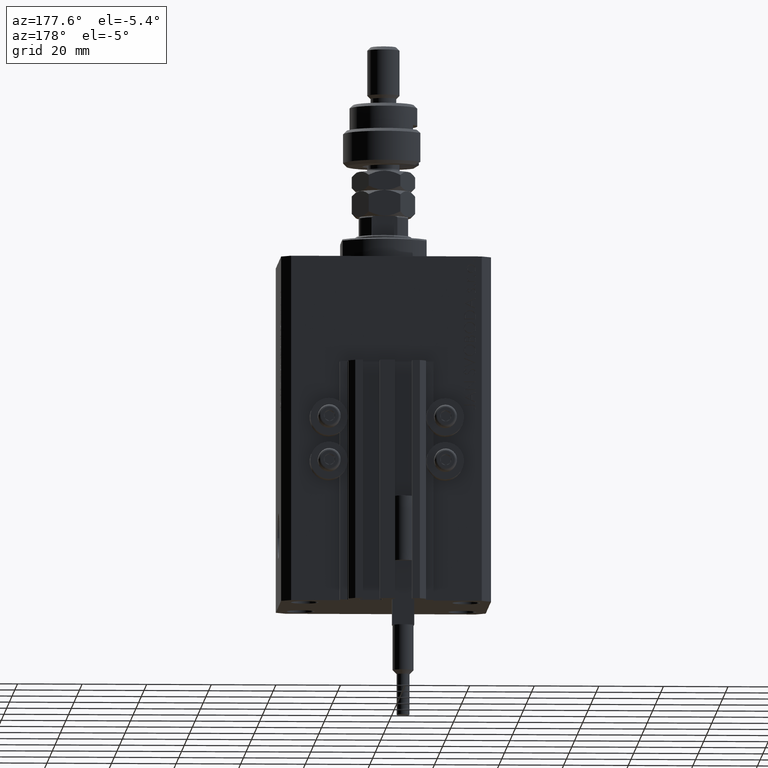
[diagram: clean part render]
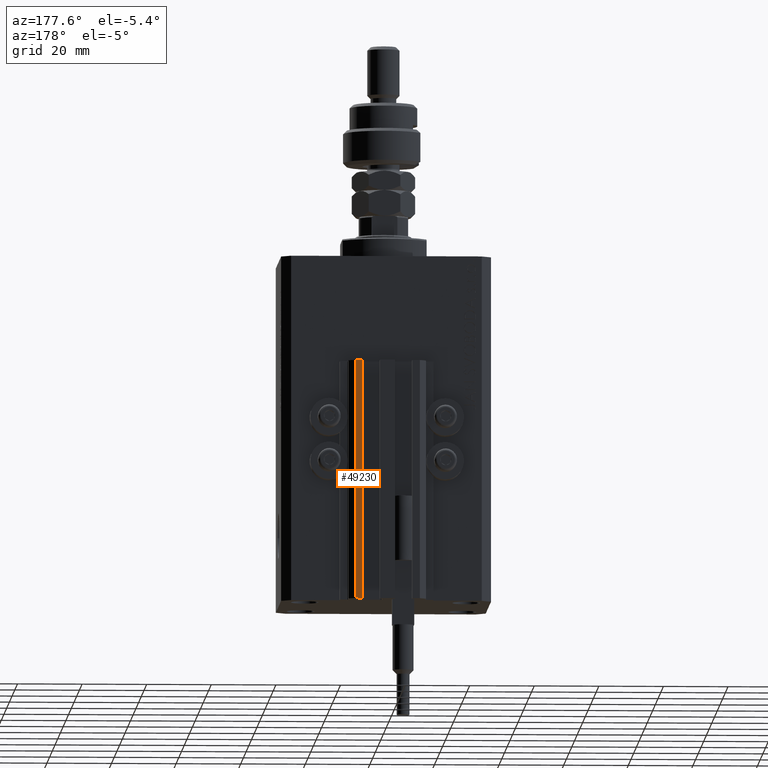
[diagram: same view with one face highlighted and labeled with its STEP entity id]
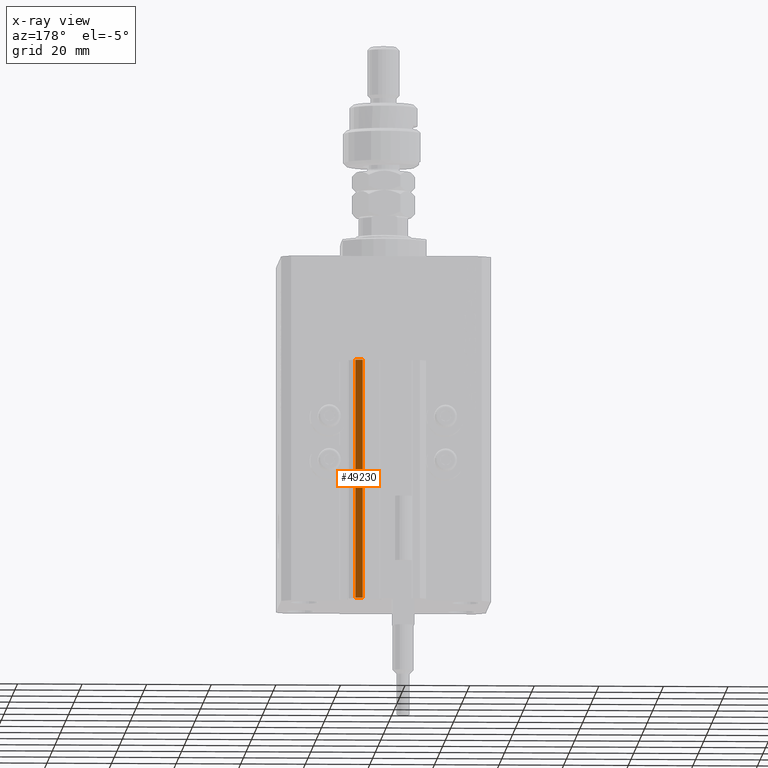
[diagram: x-ray of the same camera — body ghosted, the highlighted face saturated]
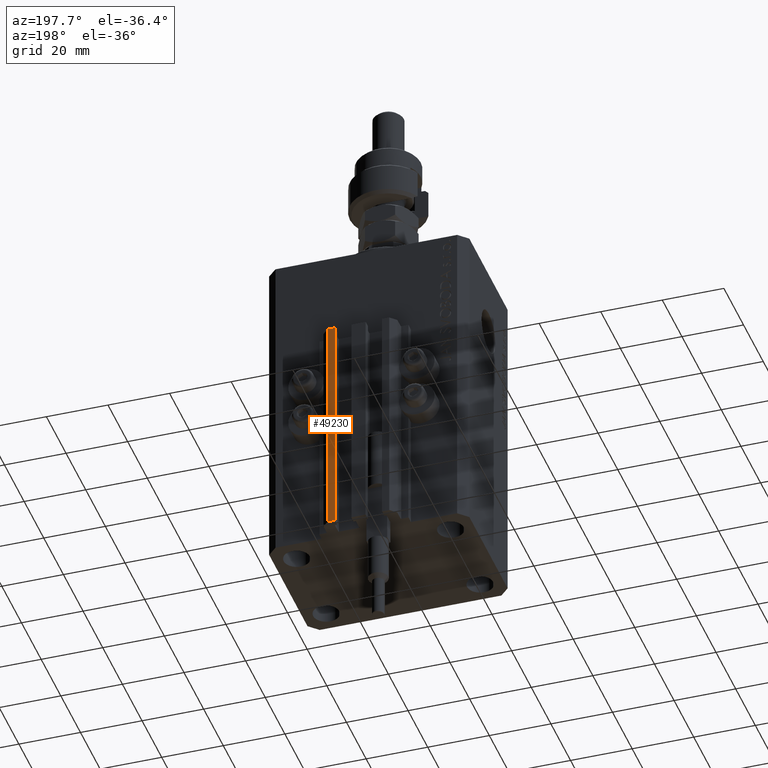
[diagram: same view with one face highlighted and labeled with its STEP entity id]
A machine part, auxiliary view. The second image highlights one B-rep face of the part: STEP entity #49230.
The next image is the same camera in x-ray: the body ghosted, the highlighted face saturated — about 0% of this face is hidden behind the body in this view.
A second angle (auxiliary view) of the same face is appended — the face is thin or edge-on in the first view.
In plain terms, the highlighted planar face has unit normal (-0, 1, 0).
Its self-contained STEP definition (entity closure, byte-faithful):
#1006 = LINE ( 'NONE', #48030, #3632 ) ;
#3632 = VECTOR ( 'NONE', #28233, 1000.000000000000000 ) ;
#4181 = VECTOR ( 'NONE', #15283, 1000.000000000000000 ) ;
#5068 = FACE_OUTER_BOUND ( 'NONE', #48317, .T. ) ;
#6491 = CARTESIAN_POINT ( 'NONE',  ( 7.649999999999995026, 30.49999999999949196, -33.00000000000000000 ) ) ;
#7465 = VERTEX_POINT ( 'NONE', #44776 ) ;
#7809 = VECTOR ( 'NONE', #28814, 1000.000000000000000 ) ;
#7912 = DIRECTION ( 'NONE',  ( 0.000000000000000000, 0.000000000000000000, 1.000000000000000000 ) ) ;
#8171 = LINE ( 'NONE', #23813, #48519 ) ;
#10279 = EDGE_CURVE ( 'NONE', #7465, #14805, #27867, .T. ) ;
#11049 = EDGE_CURVE ( 'NONE', #7465, #25635, #8171, .T. ) ;
#13883 = CARTESIAN_POINT ( 'NONE',  ( 9.999999999999994671, 30.49999999999949551, -33.00000000000000000 ) ) ;
#14805 = VERTEX_POINT ( 'NONE', #23450 ) ;
#15283 = DIRECTION ( 'NONE',  ( -1.000000000000000000, -1.476360405086644852E-15, 0.000000000000000000 ) ) ;
#15719 = ORIENTED_EDGE ( 'NONE', *, *, #36500, .F. ) ;
#16971 = CARTESIAN_POINT ( 'NONE',  ( 7.649999999999995026, 30.49999999999949196, -107.0000000000000000 ) ) ;
#20628 = ORIENTED_EDGE ( 'NONE', *, *, #10279, .T. ) ;
#20960 = DIRECTION ( 'NONE',  ( -1.000000000000000000, -1.476360405086644852E-15, 0.000000000000000000 ) ) ;
#21218 = PLANE ( 'NONE',  #38253 ) ;
#23450 = CARTESIAN_POINT ( 'NONE',  ( 7.649999999999995026, 30.49999999999949196, -107.0000000000000000 ) ) ;
#23801 = VERTEX_POINT ( 'NONE', #6491 ) ;
#23813 = CARTESIAN_POINT ( 'NONE',  ( 9.999999999999994671, 30.49999999999949551, -107.0000000000000000 ) ) ;
#25635 = VERTEX_POINT ( 'NONE', #13883 ) ;
#25712 = LINE ( 'NONE', #16971, #7809 ) ;
#27867 = LINE ( 'NONE', #47147, #4181 ) ;
#28233 = DIRECTION ( 'NONE',  ( -1.000000000000000000, -1.476360405086644852E-15, 0.000000000000000000 ) ) ;
#28688 = DIRECTION ( 'NONE',  ( -1.476360405086644852E-15, 1.000000000000000000, 0.000000000000000000 ) ) ;
#28814 = DIRECTION ( 'NONE',  ( 0.000000000000000000, 0.000000000000000000, 1.000000000000000000 ) ) ;
#36500 = EDGE_CURVE ( 'NONE', #25635, #23801, #1006, .T. ) ;
#38253 = AXIS2_PLACEMENT_3D ( 'NONE', #40775, #28688, #20960 ) ;
#39603 = ORIENTED_EDGE ( 'NONE', *, *, #11049, .F. ) ;
#40775 = CARTESIAN_POINT ( 'NONE',  ( 9.999999999999994671, 30.49999999999949551, -107.0000000000000000 ) ) ;
#44776 = CARTESIAN_POINT ( 'NONE',  ( 9.999999999999994671, 30.49999999999949551, -107.0000000000000000 ) ) ;
#46896 = EDGE_CURVE ( 'NONE', #14805, #23801, #25712, .T. ) ;
#47147 = CARTESIAN_POINT ( 'NONE',  ( 9.999999999999994671, 30.49999999999949551, -107.0000000000000000 ) ) ;
#47448 = ORIENTED_EDGE ( 'NONE', *, *, #46896, .T. ) ;
#48030 = CARTESIAN_POINT ( 'NONE',  ( 9.999999999999994671, 30.49999999999949551, -33.00000000000000000 ) ) ;
#48317 = EDGE_LOOP ( 'NONE', ( #15719, #39603, #20628, #47448 ) ) ;
#48519 = VECTOR ( 'NONE', #7912, 1000.000000000000000 ) ;
#49230 = ADVANCED_FACE ( 'NONE', ( #5068 ), #21218, .T. ) ;